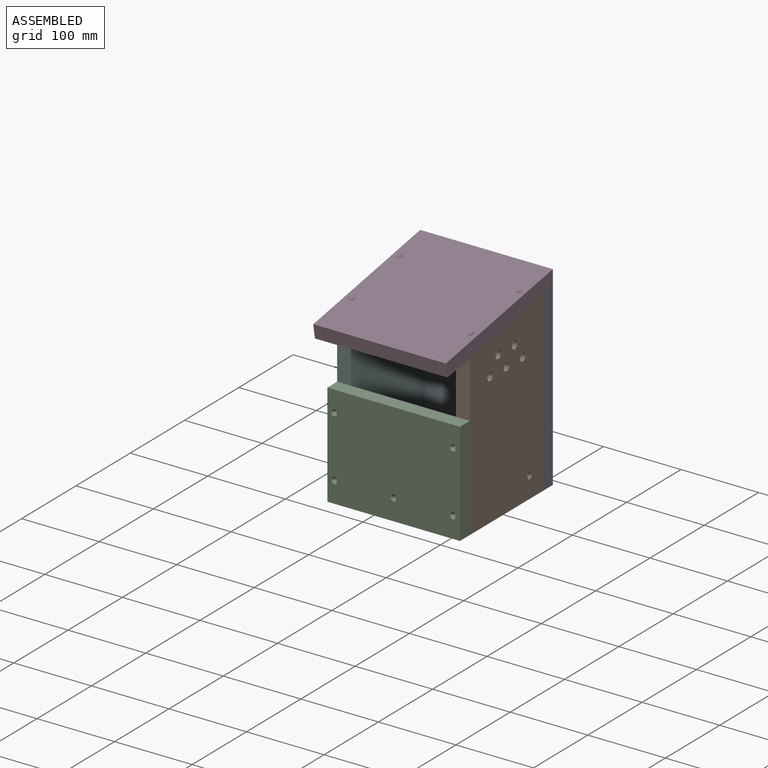
[diagram: assembled view]
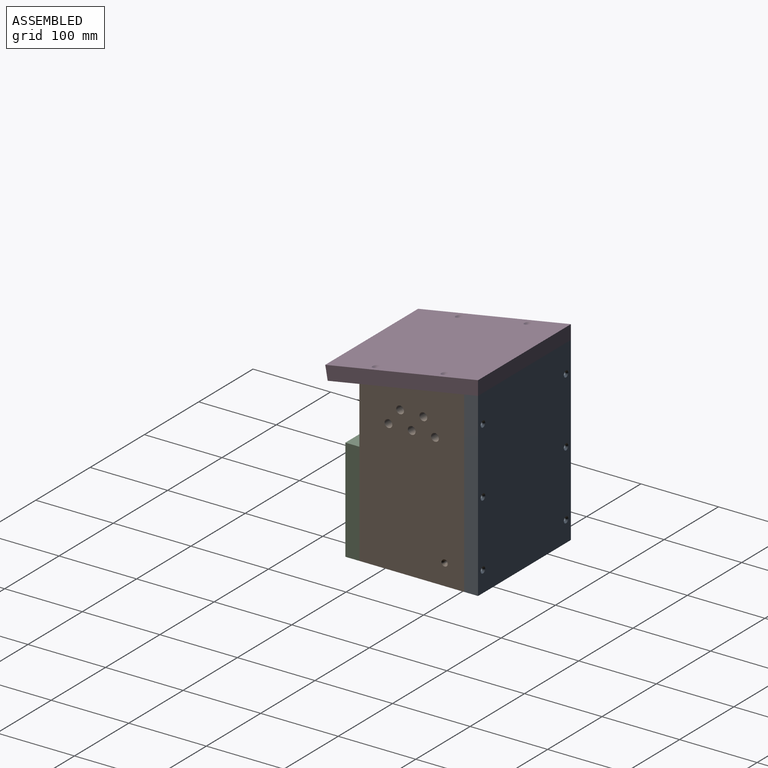
[diagram: assembled view, second angle]
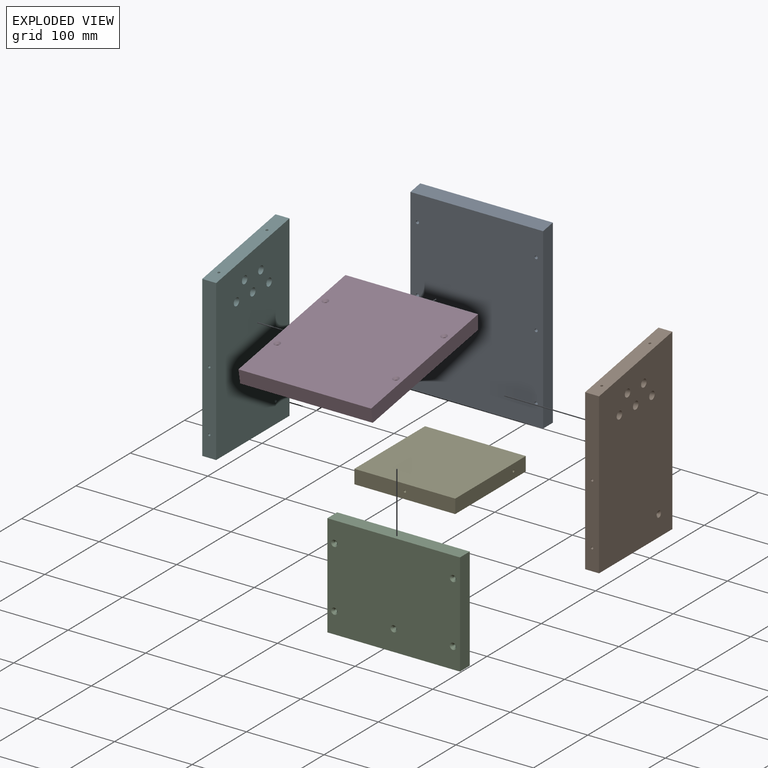
[diagram: exploded view]
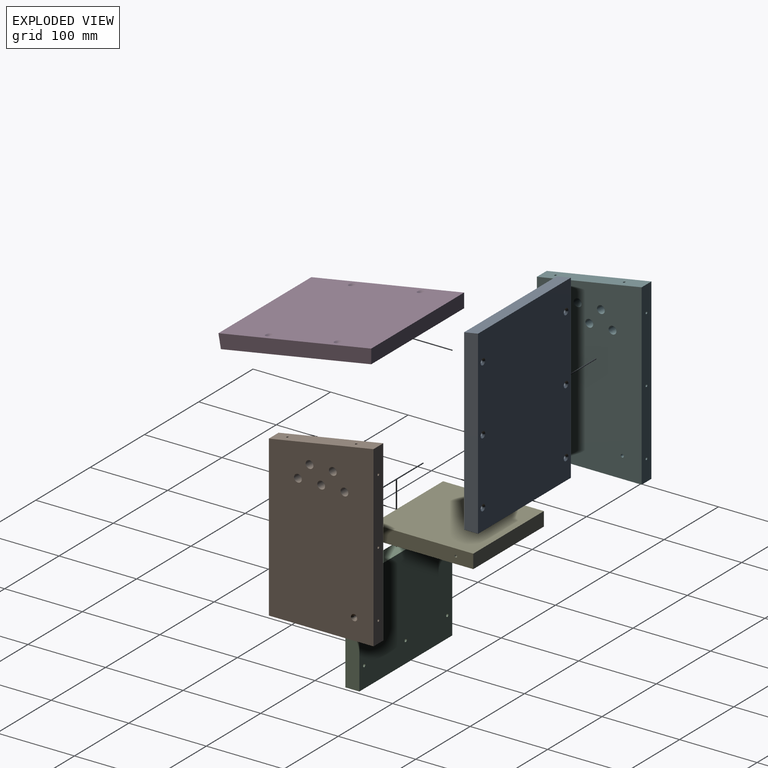
[diagram: exploded view, second angle]
ASSEMBLY  parts=6 mates=5
PART A: 18 faces, bbox 171x18x233.2 mm
  f0: plane 233.17x18mm, normal (1,0,0), area 4168.6mm2, adj f2,f3,f4,f5
  f1: plane 233.17x18mm, normal (-1,0,0), area 4168.6mm2, adj f2,f3,f4,f5
  f2: plane 171x18mm, normal (0,0,-1), area 3078mm2, adj f0,f1,f3,f4
  f3: plane 230x171mm, normal (0,-1,0), area 39254.6mm2, adj f0,f1,f2,f5,f6,f8,f10,f12
  f4: plane 233.17x171mm, normal (0,1,0), area 39555.9mm2, adj f0,f1,f2,f5,f7,f9,f11,f13
  f5: plane 171x18mm, normal (0,-0.17,0.98), area 3125.5mm2, adj f0,f1,f3,f4
  f6: cylinder r=2mm len=15.9mm, axis (0,1,0), area 199.8mm2, adj f3,f7
  f7: cone r=2mm half-angle=45deg, axis (0,1,0), area 56.9mm2, adj f4,f6
  f8: cylinder r=2mm len=15.9mm, axis (0,1,0), area 199.8mm2, adj f3,f9
  f9: cone r=2mm half-angle=45deg, axis (0,1,0), area 56.9mm2, adj f4,f8
  f10: cylinder r=2mm len=15.9mm, axis (0,1,0), area 199.8mm2, adj f3,f11
  f11: cone r=2mm half-angle=45deg, axis (0,1,0), area 56.9mm2, adj f4,f10
  f12: cylinder r=2mm len=15.9mm, axis (0,1,0), area 199.8mm2, adj f3,f13
  f13: cone r=2mm half-angle=45deg, axis (0,1,0), area 56.9mm2, adj f4,f12
  f14: cylinder r=2mm len=15.9mm, axis (0,1,0), area 199.8mm2, adj f3,f15
  f15: cone r=2mm half-angle=45deg, axis (0,1,0), area 56.9mm2, adj f4,f14
  f16: cylinder r=2mm len=15.9mm, axis (0,1,0), area 199.8mm2, adj f3,f17
  f17: cone r=2mm half-angle=45deg, axis (0,1,0), area 56.9mm2, adj f4,f16
PART B: 27 faces, bbox 18x135x230 mm
  f0: plane 135x18mm, normal (0,0,-1), area 2430mm2, adj f1,f3,f4,f5
  f1: plane 206.2x18mm, normal (0,1,0), area 3697.4mm2, adj f0,f2,f4,f5,f13,f15
  f2: plane 135x23.8mm, normal (0,0.17,0.98), area 2453.3mm2, adj f1,f3,f4,f5,f23,f25
  f3: plane 230x18mm, normal (0,-1,0), area 4118.8mm2, adj f0,f2,f4,f5,f17,f19,f21
  f4: plane 230x135mm, normal (1,0,0), area 29038mm2, adj f0,f1,f2,f3,f6,f7,f8,f9
  f5: plane 230x135mm, normal (-1,0,0), area 28997.7mm2, adj f0,f1,f2,f3,f6,f7,f8,f9
  f6: cylinder r=5mm len=18mm, axis (-1,0,0), area 565.5mm2, adj f4,f5
  f7: cylinder r=5mm len=18mm, axis (-1,0,0), area 565.5mm2, adj f4,f5
  f8: cylinder r=5mm len=18mm, axis (-1,0,0), area 565.5mm2, adj f4,f5
  f9: cylinder r=5mm len=18mm, axis (-1,0,0), area 565.5mm2, adj f4,f5
  f10: cylinder r=5mm len=18mm, axis (-1,0,0), area 565.5mm2, adj f4,f5
  f11: cylinder r=2mm len=15.9mm, axis (-1,0,0), area 199.8mm2, adj f4,f12
  f12: cone r=2mm half-angle=45deg, axis (-1,0,0), area 56.9mm2, adj f5,f11
  f13: cylinder r=1.5mm len=20mm, axis (0,1,0), area 188.5mm2, adj f1,f14
  f14: cone r=0mm half-angle=59deg, axis (0,1,0), area 8.2mm2, adj f13
  f15: cylinder r=1.5mm len=20mm, axis (0,1,0), area 188.5mm2, adj f1,f16
  f16: cone r=0mm half-angle=59deg, axis (0,1,0), area 8.2mm2, adj f15
  f17: cylinder r=1.5mm len=20mm, axis (0,-1,0), area 188.5mm2, adj f3,f18
  f18: cone r=0mm half-angle=59deg, axis (0,-1,0), area 8.2mm2, adj f17
  f19: cylinder r=1.5mm len=20mm, axis (0,-1,0), area 188.5mm2, adj f3,f20
  f20: cone r=0mm half-angle=59deg, axis (0,-1,0), area 8.2mm2, adj f19
  f21: cylinder r=1.5mm len=20mm, axis (0,-1,0), area 188.5mm2, adj f3,f22
  f22: cone r=0mm half-angle=59deg, axis (0,-1,0), area 8.2mm2, adj f21
  f23: cylinder r=1.5mm len=20.22mm, axis (0,0.17,0.98), area 188.5mm2, adj f2,f24
  f24: cone r=0mm half-angle=59deg, axis (0,0.17,0.98), area 8.2mm2, adj f23
  f25: cylinder r=1.5mm len=20.22mm, axis (0,0.17,0.98), area 188.5mm2, adj f2,f26
  f26: cone r=0mm half-angle=59deg, axis (0,0.17,0.98), area 8.2mm2, adj f25
PART C: 16 faces, bbox 171x18x133 mm
  f0: plane 133x18mm, normal (1,0,0), area 2394mm2, adj f1,f3,f4,f5
  f1: plane 171x18mm, normal (0,0,1), area 3078mm2, adj f0,f2,f4,f5
  f2: plane 133x18mm, normal (-1,0,0), area 2394mm2, adj f1,f3,f4,f5
  f3: plane 171x18mm, normal (0,0,-1), area 3078mm2, adj f0,f2,f4,f5
  f4: plane 171x133mm, normal (0,-1,0), area 22478.9mm2, adj f0,f1,f2,f3,f7,f9,f11,f13
  f5: plane 171x133mm, normal (0,1,0), area 22680.2mm2, adj f0,f1,f2,f3,f6,f8,f10,f12
  f6: cylinder r=2mm len=15.9mm, axis (0,-1,0), area 199.8mm2, adj f5,f7
  f7: cone r=2mm half-angle=45deg, axis (0,-1,0), area 56.9mm2, adj f4,f6
  f8: cylinder r=2mm len=15.9mm, axis (0,-1,0), area 199.8mm2, adj f5,f9
  f9: cone r=2mm half-angle=45deg, axis (0,-1,0), area 56.9mm2, adj f4,f8
  f10: cylinder r=2mm len=15.9mm, axis (0,-1,0), area 199.8mm2, adj f5,f11
  f11: cone r=2mm half-angle=45deg, axis (0,-1,0), area 56.9mm2, adj f4,f10
  f12: cylinder r=2mm len=15.9mm, axis (0,-1,0), area 199.8mm2, adj f5,f13
  f13: cone r=2mm half-angle=45deg, axis (0,-1,0), area 56.9mm2, adj f4,f12
  f14: cylinder r=2mm len=15.9mm, axis (0,-1,0), area 199.8mm2, adj f5,f15
  f15: cone r=2mm half-angle=45deg, axis (0,-1,0), area 56.9mm2, adj f4,f14
PART D: 14 faces, bbox 171x200x18 mm
  f0: plane 200x18mm, normal (1,0,0), area 3571.4mm2, adj f2,f3,f4,f5
  f1: plane 200x18mm, normal (-1,0,0), area 3571.4mm2, adj f2,f3,f4,f5
  f2: plane 171x18mm, normal (0,-1,0), area 3078mm2, adj f0,f1,f3,f4
  f3: plane 200x171mm, normal (0,0,1), area 33988.8mm2, adj f0,f1,f2,f5,f7,f9,f11,f13
  f4: plane 196.83x171mm, normal (0,0,-1), area 33629mm2, adj f0,f1,f2,f5,f6,f8,f10,f12
  f5: plane 171x18mm, normal (0,0.98,-0.17), area 3125.5mm2, adj f0,f1,f3,f4
  f6: cylinder r=1.5mm len=15.4mm, axis (0,0,1), area 145.1mm2, adj f4,f7
  f7: cone r=1.5mm half-angle=45deg, axis (0,0,1), area 64.7mm2, adj f3,f6
  f8: cylinder r=1.5mm len=15.4mm, axis (0,0,1), area 145.1mm2, adj f4,f9
  f9: cone r=1.5mm half-angle=45deg, axis (0,0,1), area 64.7mm2, adj f3,f8
  f10: cylinder r=1.5mm len=15.4mm, axis (0,0,1), area 145.1mm2, adj f4,f11
  f11: cone r=1.5mm half-angle=45deg, axis (0,0,1), area 64.7mm2, adj f3,f10
  f12: cylinder r=1.5mm len=15.4mm, axis (0,0,1), area 145.1mm2, adj f4,f13
  f13: cone r=1.5mm half-angle=45deg, axis (0,0,1), area 64.7mm2, adj f3,f12
PART E: 12 faces, bbox 130x130x18 mm
  f0: plane 130x18mm, normal (0,-1,0), area 2332.9mm2, adj f1,f3,f4,f5,f6
  f1: plane 130x18mm, normal (1,0,0), area 2332.9mm2, adj f0,f2,f4,f5,f8
  f2: plane 130x18mm, normal (0,1,0), area 2340mm2, adj f1,f3,f4,f5
  f3: plane 130x18mm, normal (-1,0,0), area 2332.9mm2, adj f0,f2,f4,f5,f10
  f4: plane 130x130mm, normal (0,0,1), area 16900mm2, adj f0,f1,f2,f3
  f5: plane 130x130mm, normal (0,0,-1), area 16900mm2, adj f0,f1,f2,f3
  f6: cylinder r=1.5mm len=17.5mm, axis (0,-1,0), area 164.9mm2, adj f0,f7
  f7: cone r=0mm half-angle=59deg, axis (0,-1,0), area 8.2mm2, adj f6
  f8: cylinder r=1.5mm len=17.5mm, axis (1,0,0), area 164.9mm2, adj f1,f9
  f9: cone r=0mm half-angle=59deg, axis (1,0,0), area 8.2mm2, adj f8
  f10: cylinder r=1.5mm len=17.5mm, axis (-1,0,0), area 164.9mm2, adj f3,f11
  f11: cone r=0mm half-angle=59deg, axis (-1,0,0), area 8.2mm2, adj f10
PART F: 27 faces, bbox 18x135x230 mm
  f0: plane 135x18mm, normal (0,0,-1), area 2430mm2, adj f1,f3,f4,f5
  f1: plane 206.2x18mm, normal (0,1,0), area 3697.4mm2, adj f0,f2,f4,f5,f13,f15
  f2: plane 135x23.8mm, normal (0,0.17,0.98), area 2453.3mm2, adj f1,f3,f4,f5,f23,f25
  f3: plane 230x18mm, normal (0,-1,0), area 4118.8mm2, adj f0,f2,f4,f5,f17,f19,f21
  f4: plane 230x135mm, normal (1,0,0), area 28997.7mm2, adj f0,f1,f2,f3,f6,f7,f8,f9
  f5: plane 230x135mm, normal (-1,0,0), area 29038mm2, adj f0,f1,f2,f3,f6,f7,f8,f9
  f6: cylinder r=5mm len=18mm, axis (-1,0,0), area 565.5mm2, adj f4,f5
  f7: cylinder r=5mm len=18mm, axis (-1,0,0), area 565.5mm2, adj f4,f5
  f8: cylinder r=5mm len=18mm, axis (-1,0,0), area 565.5mm2, adj f4,f5
  f9: cylinder r=5mm len=18mm, axis (-1,0,0), area 565.5mm2, adj f4,f5
  f10: cylinder r=5mm len=18mm, axis (-1,0,0), area 565.5mm2, adj f4,f5
  f11: cylinder r=2mm len=15.9mm, axis (1,0,0), area 199.8mm2, adj f5,f12
  f12: cone r=2mm half-angle=45deg, axis (1,0,0), area 56.9mm2, adj f4,f11
  f13: cylinder r=1.5mm len=20mm, axis (0,1,0), area 188.5mm2, adj f1,f14
  f14: cone r=0mm half-angle=59deg, axis (0,1,0), area 8.2mm2, adj f13
  f15: cylinder r=1.5mm len=20mm, axis (0,1,0), area 188.5mm2, adj f1,f16
  f16: cone r=0mm half-angle=59deg, axis (0,1,0), area 8.2mm2, adj f15
  f17: cylinder r=1.5mm len=20mm, axis (0,-1,0), area 188.5mm2, adj f3,f18
  f18: cone r=0mm half-angle=59deg, axis (0,-1,0), area 8.2mm2, adj f17
  f19: cylinder r=1.5mm len=20mm, axis (0,-1,0), area 188.5mm2, adj f3,f20
  f20: cone r=0mm half-angle=59deg, axis (0,-1,0), area 8.2mm2, adj f19
  f21: cylinder r=1.5mm len=20mm, axis (0,-1,0), area 188.5mm2, adj f3,f22
  f22: cone r=0mm half-angle=59deg, axis (0,-1,0), area 8.2mm2, adj f21
  f23: cylinder r=1.5mm len=20.22mm, axis (0,0.17,0.98), area 188.5mm2, adj f2,f24
  f24: cone r=0mm half-angle=59deg, axis (0,0.17,0.98), area 8.2mm2, adj f23
  f25: cylinder r=1.5mm len=20.22mm, axis (0,0.17,0.98), area 188.5mm2, adj f2,f26
  f26: cone r=0mm half-angle=59deg, axis (0,0.17,0.98), area 8.2mm2, adj f25
PLACE A t=(19.68,113.91,152)mm
PLACE B rot(axis=(0,0,-1),180deg) t=(105.18,95.91,35.41)mm
PLACE C t=(19.68,-39.09,101.91)mm
PLACE D rot(axis=(1,0,0),10deg) t=(19.68,18.55,251.77)mm
PLACE E rot(axis=(-1,0,0),0deg) t=(19.68,28.41,53.41)mm
PLACE F rot(axis=(0,0,-1),180deg) t=(-47.82,95.91,35.41)mm
MATE fastened F.f0 <-> A.f2  axis (0,0,-1) through (-65.82,95.91,35.41)mm
MATE fastened D.f5 <-> A.f4  axis (0,1,0) through (19.68,113.91,268.58)mm
MATE revolute E.f9 <-> B.f11  axis (1,0,0) through (84.68,70.91,62.41)mm
MATE fastened B.f0 <-> A.f2  axis (0,0,-1) through (105.18,95.91,35.41)mm
MATE fastened C.f3 <-> B.f0  axis (0,0,-1) through (105.18,-39.09,35.41)mm
